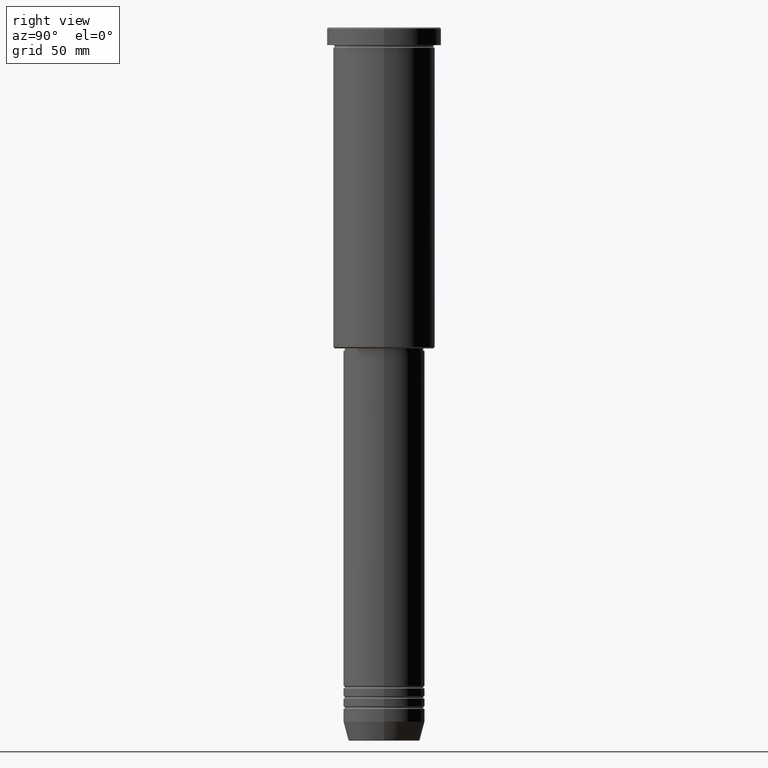
[diagram: clean part render]
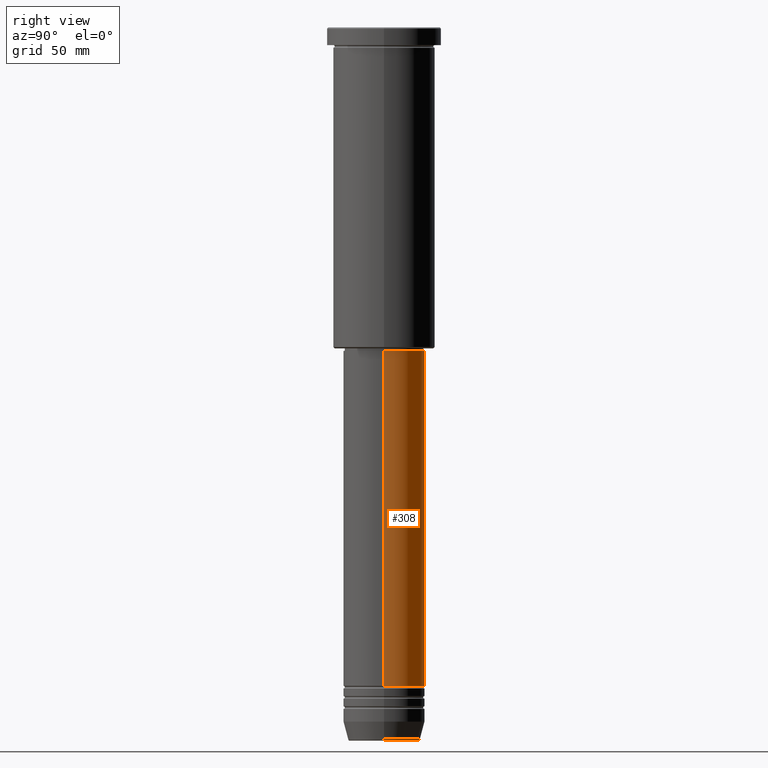
[diagram: same view with one face highlighted and labeled with its STEP entity id]
A machine part, right view. The second image highlights one B-rep face of the part: STEP entity #308.
In plain terms, the highlighted cylindrical surface (partial cylindrical patch) has radius 16 mm, axis along (-0, -0, 1).
Its self-contained STEP definition (entity closure, byte-faithful):
#22 = VERTEX_POINT ( 'NONE', #188 ) ;
#28 = VECTOR ( 'NONE', #679, 1000.000000000000000 ) ;
#59 = DIRECTION ( 'NONE',  ( 1.000000000000000000, 0.000000000000000000, 0.000000000000000000 ) ) ;
#103 = ORIENTED_EDGE ( 'NONE', *, *, #1162, .T. ) ;
#113 = CARTESIAN_POINT ( 'NONE',  ( 16.00000000000000000, 0.000000000000000000, -258.5000000000000000 ) ) ;
#148 = EDGE_CURVE ( 'NONE', #22, #887, #234, .T. ) ;
#160 = CARTESIAN_POINT ( 'NONE',  ( 16.00000000000000000, 0.000000000000000000, 0.000000000000000000 ) ) ;
#165 = EDGE_LOOP ( 'NONE', ( #103, #719, #515, #262 ) ) ;
#166 = DIRECTION ( 'NONE',  ( -0.000000000000000000, -0.000000000000000000, 1.000000000000000000 ) ) ;
#188 = CARTESIAN_POINT ( 'NONE',  ( 16.00000000000000000, 0.000000000000000000, -127.0000000000000000 ) ) ;
#234 = CIRCLE ( 'NONE', #505, 16.00000000000000000 ) ;
#240 = CARTESIAN_POINT ( 'NONE',  ( 0.000000000000000000, 0.000000000000000000, -127.0000000000000000 ) ) ;
#262 = ORIENTED_EDGE ( 'NONE', *, *, #278, .F. ) ;
#278 = EDGE_CURVE ( 'NONE', #972, #22, #872, .T. ) ;
#304 = CIRCLE ( 'NONE', #965, 16.00000000000000000 ) ;
#308 = ADVANCED_FACE ( 'NONE', ( #976 ), #1085, .T. ) ;
#314 = CARTESIAN_POINT ( 'NONE',  ( -16.00000000000000000, 1.959434878635765131E-15, 0.000000000000000000 ) ) ;
#411 = VECTOR ( 'NONE', #516, 1000.000000000000000 ) ;
#433 = EDGE_CURVE ( 'NONE', #1148, #887, #955, .T. ) ;
#473 = AXIS2_PLACEMENT_3D ( 'NONE', #884, #166, #59 ) ;
#505 = AXIS2_PLACEMENT_3D ( 'NONE', #240, #868, #635 ) ;
#515 = ORIENTED_EDGE ( 'NONE', *, *, #148, .F. ) ;
#516 = DIRECTION ( 'NONE',  ( -0.000000000000000000, -0.000000000000000000, 1.000000000000000000 ) ) ;
#607 = CARTESIAN_POINT ( 'NONE',  ( -16.00000000000000000, 1.959434878635765131E-15, -258.5000000000000000 ) ) ;
#618 = DIRECTION ( 'NONE',  ( -0.000000000000000000, -0.000000000000000000, 1.000000000000000000 ) ) ;
#635 = DIRECTION ( 'NONE',  ( 1.000000000000000000, 0.000000000000000000, 0.000000000000000000 ) ) ;
#679 = DIRECTION ( 'NONE',  ( -0.000000000000000000, -0.000000000000000000, 1.000000000000000000 ) ) ;
#719 = ORIENTED_EDGE ( 'NONE', *, *, #433, .T. ) ;
#868 = DIRECTION ( 'NONE',  ( -0.000000000000000000, -0.000000000000000000, 1.000000000000000000 ) ) ;
#872 = LINE ( 'NONE', #160, #411 ) ;
#884 = CARTESIAN_POINT ( 'NONE',  ( 0.000000000000000000, 0.000000000000000000, 0.000000000000000000 ) ) ;
#887 = VERTEX_POINT ( 'NONE', #1112 ) ;
#955 = LINE ( 'NONE', #314, #28 ) ;
#965 = AXIS2_PLACEMENT_3D ( 'NONE', #989, #618, #974 ) ;
#972 = VERTEX_POINT ( 'NONE', #113 ) ;
#974 = DIRECTION ( 'NONE',  ( 1.000000000000000000, 0.000000000000000000, 0.000000000000000000 ) ) ;
#976 = FACE_OUTER_BOUND ( 'NONE', #165, .T. ) ;
#989 = CARTESIAN_POINT ( 'NONE',  ( 0.000000000000000000, 0.000000000000000000, -258.5000000000000000 ) ) ;
#1085 = CYLINDRICAL_SURFACE ( 'NONE', #473, 16.00000000000000000 ) ;
#1112 = CARTESIAN_POINT ( 'NONE',  ( -16.00000000000000000, 1.959434878635765131E-15, -127.0000000000000000 ) ) ;
#1148 = VERTEX_POINT ( 'NONE', #607 ) ;
#1162 = EDGE_CURVE ( 'NONE', #972, #1148, #304, .T. ) ;